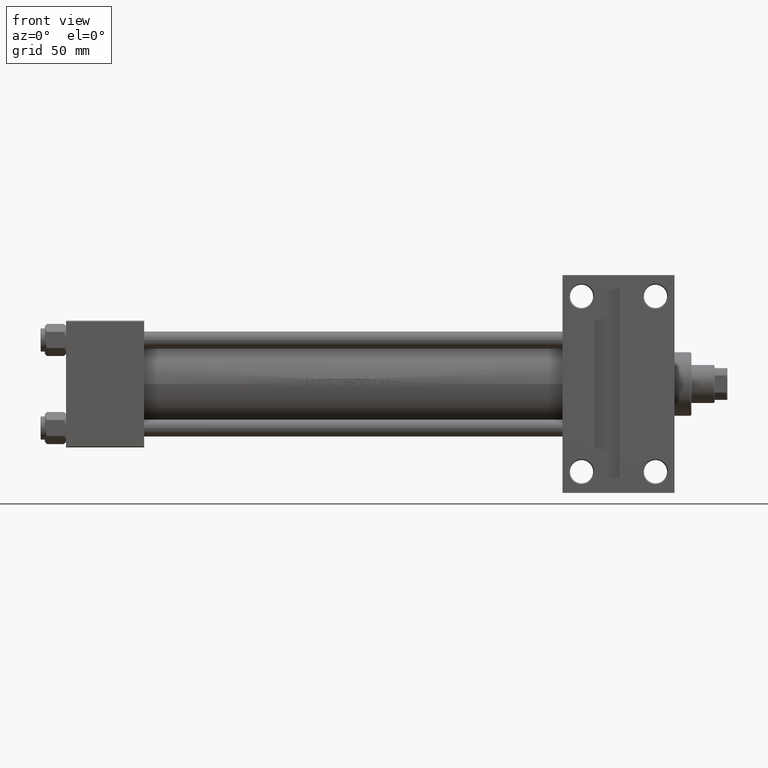
[diagram: clean part render]
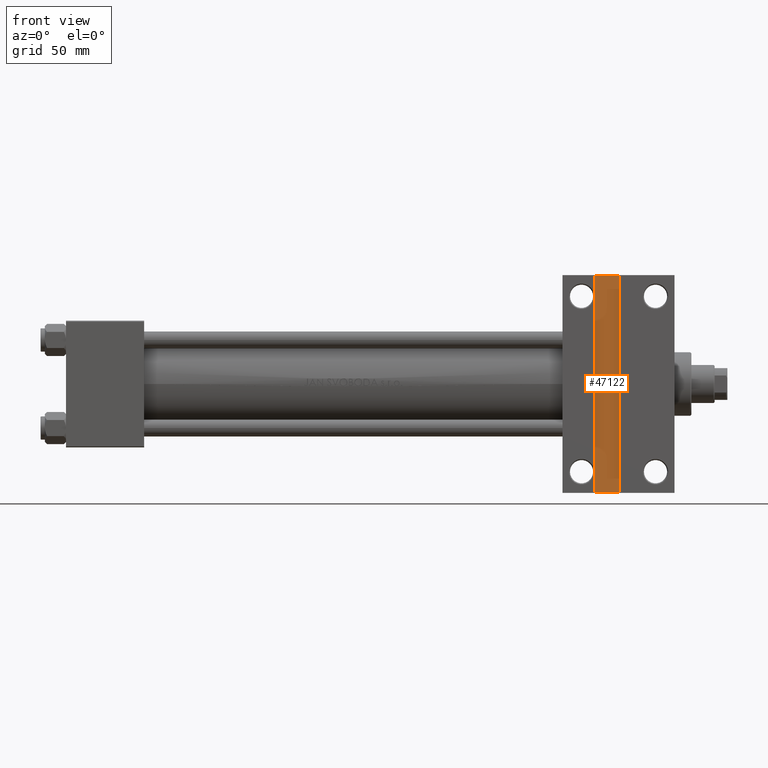
[diagram: same view with one face highlighted and labeled with its STEP entity id]
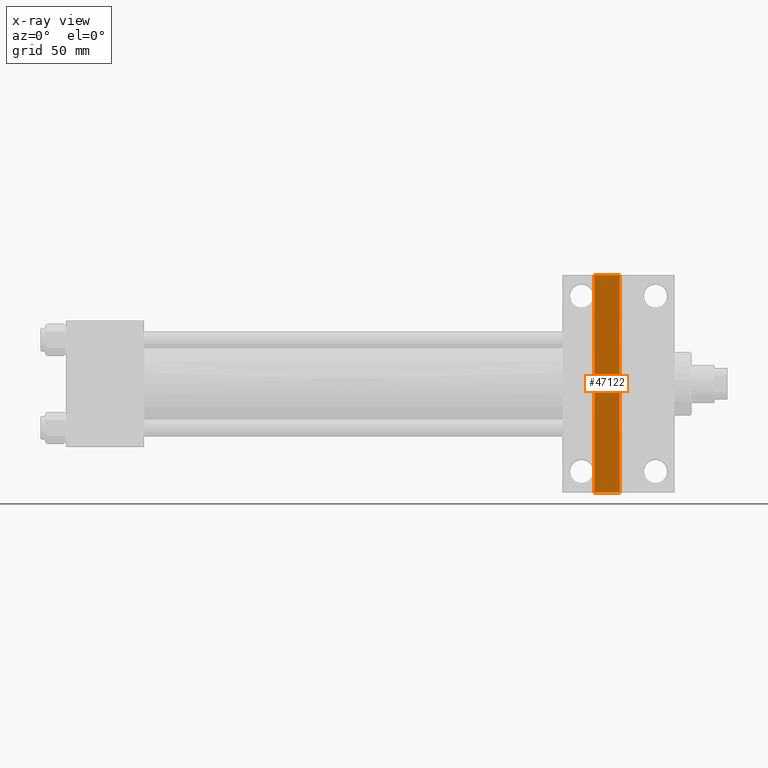
[diagram: x-ray of the same camera — body ghosted, the highlighted face saturated]
A machine part, front view. The second image highlights one B-rep face of the part: STEP entity #47122.
The next image is the same camera in x-ray: the body ghosted, the highlighted face saturated — about 0% of this face is hidden behind the body in this view.
In plain terms, the highlighted planar face has unit normal (0, -1, 0).
Its self-contained STEP definition (entity closure, byte-faithful):
#1684 = VERTEX_POINT ( 'NONE', #15125 ) ;
#2071 = DIRECTION ( 'NONE',  ( 0.000000000000000000, 0.000000000000000000, -1.000000000000000000 ) ) ;
#4802 = FACE_OUTER_BOUND ( 'NONE', #45881, .T. ) ;
#6313 = VECTOR ( 'NONE', #17715, 1000.000000000000000 ) ;
#9031 = CARTESIAN_POINT ( 'NONE',  ( 262.0000000000000000, -51.50000000000002132, -25.99999999999999645 ) ) ;
#15125 = CARTESIAN_POINT ( 'NONE',  ( 250.0000000000000568, -51.49999999999997868, -25.99999999999999645 ) ) ;
#15975 = DIRECTION ( 'NONE',  ( -1.000000000000000000, -0.000000000000000000, -0.000000000000000000 ) ) ;
#16145 = DIRECTION ( 'NONE',  ( -1.000000000000000000, 0.000000000000000000, -0.000000000000000000 ) ) ;
#17715 = DIRECTION ( 'NONE',  ( 0.000000000000000000, 1.000000000000000000, 0.000000000000000000 ) ) ;
#17870 = EDGE_CURVE ( 'NONE', #34160, #44800, #33703, .T. ) ;
#18939 = CARTESIAN_POINT ( 'NONE',  ( 262.0000000000000000, -51.49999999999997868, -25.99999999999999645 ) ) ;
#20557 = PLANE ( 'NONE',  #41727 ) ;
#20647 = EDGE_CURVE ( 'NONE', #34328, #1684, #41620, .T. ) ;
#22173 = ORIENTED_EDGE ( 'NONE', *, *, #20647, .T. ) ;
#22388 = LINE ( 'NONE', #44824, #6313 ) ;
#22490 = ORIENTED_EDGE ( 'NONE', *, *, #17870, .T. ) ;
#23864 = CARTESIAN_POINT ( 'NONE',  ( 250.0000000000000568, -51.49999999999997868, -25.99999999999999645 ) ) ;
#24029 = VECTOR ( 'NONE', #41087, 1000.000000000000000 ) ;
#26551 = CARTESIAN_POINT ( 'NONE',  ( 250.0000000000000568, 51.49999999999997868, -25.99999999999999645 ) ) ;
#29564 = LINE ( 'NONE', #18939, #42527 ) ;
#29823 = EDGE_CURVE ( 'NONE', #44800, #34328, #29564, .T. ) ;
#33338 = CARTESIAN_POINT ( 'NONE',  ( 262.0000000000000000, 51.49999999999997868, -25.99999999999999645 ) ) ;
#33703 = LINE ( 'NONE', #26551, #24029 ) ;
#34160 = VERTEX_POINT ( 'NONE', #48238 ) ;
#34328 = VERTEX_POINT ( 'NONE', #9031 ) ;
#35855 = CARTESIAN_POINT ( 'NONE',  ( 0.000000000000000000, 0.000000000000000000, -25.99999999999999645 ) ) ;
#38521 = ORIENTED_EDGE ( 'NONE', *, *, #47577, .T. ) ;
#40898 = DIRECTION ( 'NONE',  ( -0.000000000000000000, -1.000000000000000000, -0.000000000000000000 ) ) ;
#41087 = DIRECTION ( 'NONE',  ( 1.000000000000000000, 0.000000000000000000, 0.000000000000000000 ) ) ;
#41103 = ORIENTED_EDGE ( 'NONE', *, *, #29823, .T. ) ;
#41620 = LINE ( 'NONE', #23864, #47755 ) ;
#41727 = AXIS2_PLACEMENT_3D ( 'NONE', #35855, #2071, #16145 ) ;
#42527 = VECTOR ( 'NONE', #40898, 1000.000000000000000 ) ;
#44800 = VERTEX_POINT ( 'NONE', #33338 ) ;
#44824 = CARTESIAN_POINT ( 'NONE',  ( 250.0000000000000568, -51.49999999999997868, -25.99999999999999645 ) ) ;
#45881 = EDGE_LOOP ( 'NONE', ( #41103, #22173, #38521, #22490 ) ) ;
#47122 = ADVANCED_FACE ( 'NONE', ( #4802 ), #20557, .T. ) ;
#47577 = EDGE_CURVE ( 'NONE', #1684, #34160, #22388, .T. ) ;
#47755 = VECTOR ( 'NONE', #15975, 1000.000000000000000 ) ;
#48238 = CARTESIAN_POINT ( 'NONE',  ( 250.0000000000000568, 51.49999999999997868, -25.99999999999999645 ) ) ;